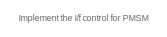
[diagram: root canvas - part 1/2, top center region]
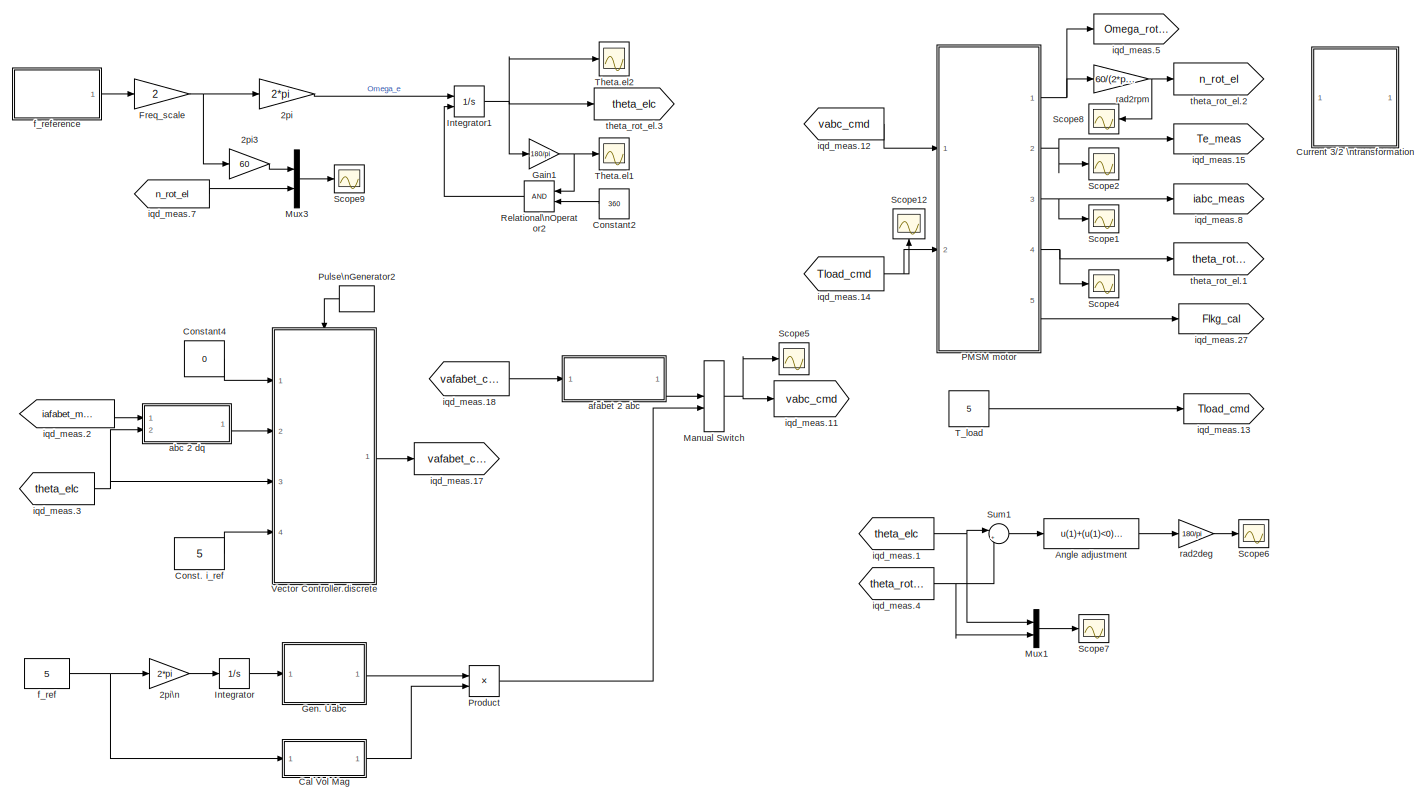
[diagram: root canvas - part 2/2, most of the canvas]
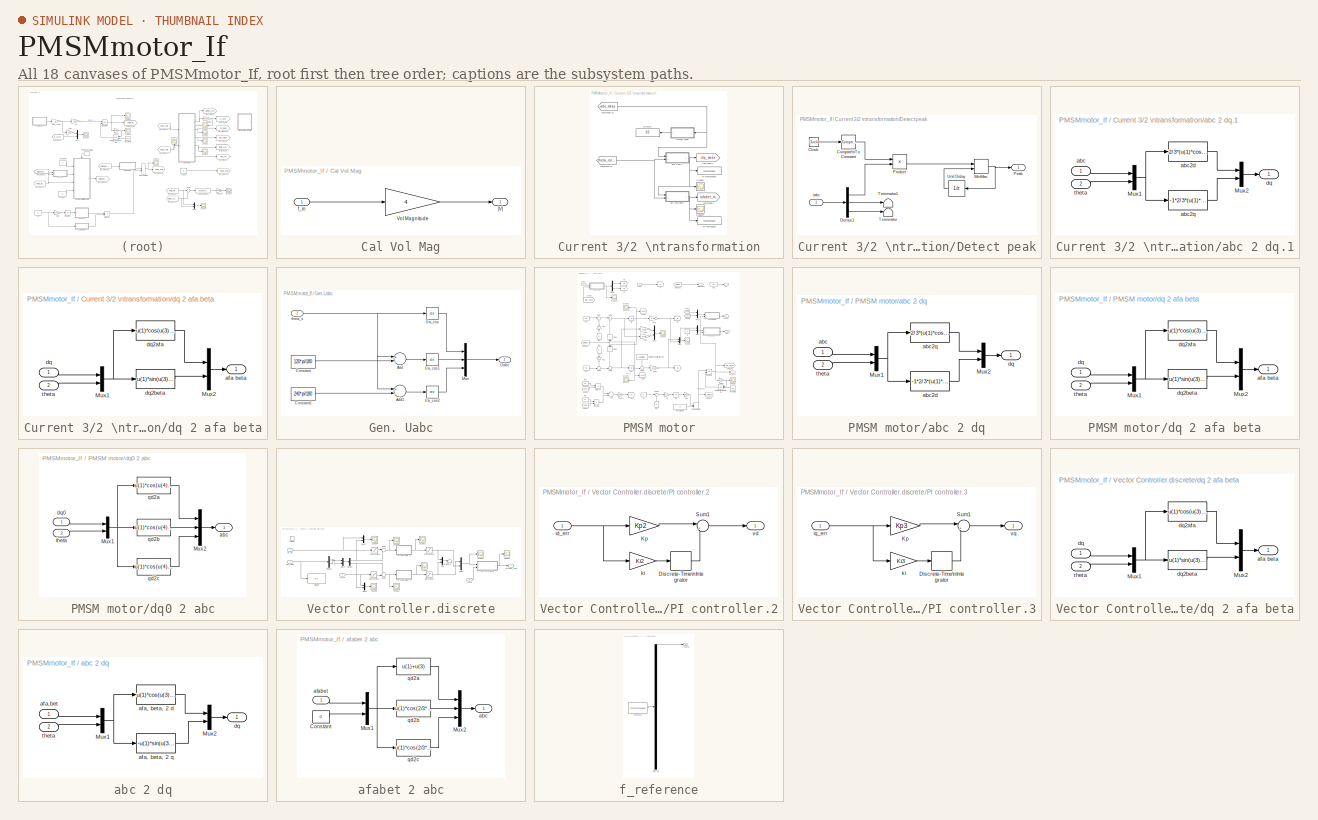
[diagram: thumbnail index - all 18 canvases of the model, root first then tree order]
MODEL PMSMmotor_If
KIND model
BLOCK [Gain] 2pi
  Gain = 2*pi
  OutDataTypeStr = Inherit: Inherit via internal rule
  ParamDataTypeStr = Inherit: Inherit via internal rule
  SID = 6066
  SaturateOnIntegerOverflow = off
BLOCK [Gain] 2pi3
  Gain = 60
  OutDataTypeStr = Inherit: Inherit via internal rule
  ParamDataTypeStr = Inherit: Inherit via internal rule
  SID = 6100
  SaturateOnIntegerOverflow = off
BLOCK [Gain] 2pi\n
  Gain = 2*pi
  OutDataTypeStr = Inherit: Inherit via internal rule
  ParamDataTypeStr = Inherit: Inherit via internal rule
  SID = 6107
  SaturateOnIntegerOverflow = off
BLOCK [Fcn] Angle adjustment
  Expr = u(1)+(u(1)<0)*2*pi
  SID = 6092
BLOCK [SubSystem] Cal Vol Mag
  Ports = [1, 1]
  RequestExecContextInheritance = off
  SID = 6130
  Variant = off
BLOCK [Gain] Cal Vol Mag/Vol Magnitude
  Gain = 4
  OutDataTypeStr = Inherit: Inherit via internal rule
  ParamDataTypeStr = Inherit: Inherit via internal rule
  SID = 6132
  SaturateOnIntegerOverflow = off
BLOCK [Inport] Cal Vol Mag/f_in
  IconDisplay = Port number
  SID = 6131
BLOCK [Outport] Cal Vol Mag/|V|
  IconDisplay = Port number
  SID = 6133
BLOCK [Constant] Const. i_ref
  SID = 4
  Value = 5
BLOCK [Constant] Constant2
  SID = 6079
  Value = 360
BLOCK [Constant] Constant4
  SID = 1036
  Value = 0
BLOCK [SubSystem] Current 3//2 \ntransformation
  Ports = []
  RequestExecContextInheritance = off
  SID = 7
  Variant = off
BLOCK [SubSystem] Current 3//2 \ntransformation/Detect peak
  Ports = [1, 1]
  RequestExecContextInheritance = off
  SID = 11
  Variant = off
BLOCK [Clock] Current 3//2 \ntransformation/Detect peak/Clock
  SID = 13
BLOCK [Reference] Current 3//2 \ntransformation/Detect peak/Compare\nTo Constant  REF=simulink/Logic and Bit\nOperations/Compare\nTo Constant
  OutDataTypeStr = uint8
  Ports = [1, 1]
  SID = 14
  SourceBlock = simulink/Logic and Bit\nOperations/Compare\nTo Constant
  SourceProductBaseCode = SL
  SourceProductName = Simulink
  SourceType = Compare To Constant
  ZeroCross = off
  const = 9.5
  relop = >=
BLOCK [Demux] Current 3//2 \ntransformation/Detect peak/Demux1
  DisplayOption = bar
  Outputs = 3
  Ports = [1, 3]
  SID = 15
BLOCK [MinMax] Current 3//2 \ntransformation/Detect peak/MinMax
  Function = max
  InputSameDT = off
  Inputs = 2
  Ports = [2, 1]
  SID = 16
  SaturateOnIntegerOverflow = off
BLOCK [Outport] Current 3//2 \ntransformation/Detect peak/Peak
  IconDisplay = Port number
  SID = 21
BLOCK [Product] Current 3//2 \ntransformation/Detect peak/Product
  InputSameDT = off
  OutDataTypeStr = Inherit: Inherit via internal rule
  Ports = [2, 1]
  SID = 17
  SaturateOnIntegerOverflow = off
BLOCK [Terminator] Current 3//2 \ntransformation/Detect peak/Terminator
  SID = 18
BLOCK [Terminator] Current 3//2 \ntransformation/Detect peak/Terminator1
  SID = 19
BLOCK [UnitDelay] Current 3//2 \ntransformation/Detect peak/Unit Delay
  SID = 20
  SampleTime = 1/5e3
BLOCK [Inport] Current 3//2 \ntransformation/Detect peak/iabc
  IconDisplay = Port number
  SID = 12
BLOCK [Display] Current 3//2 \ntransformation/Display
  Decimation = 1
  Ports = [1]
  SID = 27
BLOCK [Scope] Current 3//2 \ntransformation/Scope14
  NumInputPorts = 1
  Ports = [1]
  SID = 34
  ScopeSpecificationString = C++SS(StrPVP('Location','[119, 56, 1049, 720]'),StrPVP('Open','off'),MxPVP('AxesTitles',53,'struct(''axes1'',''%<SignalLabel>'')'),MxPVP('ScopeGraphics',56,'struct(''FigureColor'',''[0.5 0.5 0.5]'',''AxesColor'',''[0 0 0]'',''AxesTickColor'',''[1 1 1]'',''LineColors'',''[1 1 0;1 0 1;0 1 1;1 0 0;0 1 0;0 0 1]'',''LineStyles'',''-|-|-|-|-|-'',''LineWidths'',''[0.5 0.5 0.5 0.5 0.5 0.5]'',''MarkerStyle...<+318ch>
BLOCK [Scope] Current 3//2 \ntransformation/Scope6
  NumInputPorts = 1
  Ports = [1]
  SID = 35
  ScopeSpecificationString = C++SS(StrPVP('Location','[533, 264, 1183, 659]'),StrPVP('Open','off'),StrPVP('ZoomMode','xonly'),MxPVP('AxesTitles',53,'struct(''axes1'',''%<SignalLabel>'')'),MxPVP('ScopeGraphics',56,'struct(''FigureColor'',''[0.5 0.5 0.5]'',''AxesColor'',''[0 0 0]'',''AxesTickColor'',''[1 1 1]'',''LineColors'',''[1 1 0;1 0 1;0 1 1;1 0 0;0 1 0;0 0 1]'',''LineStyles'',''-|-|-|-|-|-'',''LineWidths'',''[0.5 0.5 0.5 ...<+301ch>
BLOCK [ToWorkspace] Current 3//2 \ntransformation/To Workspace
  MaxDataPoints = inf
  Ports = [1]
  SID = 36
  SampleTime = 1/fs/4
  SaveFormat = Structure With Time
  VariableName = iafabet_ws
BLOCK [ToWorkspace] Current 3//2 \ntransformation/To Workspace1
  MaxDataPoints = inf
  Ports = [1]
  SID = 37
  SampleTime = 1/fs/4
  SaveFormat = Structure With Time
  VariableName = idq_ws
BLOCK [SubSystem] Current 3//2 \ntransformation/abc 2 dq.1
  Ports = [2, 1]
  RequestExecContextInheritance = off
  SID = 38
  Variant = off
BLOCK [Mux] Current 3//2 \ntransformation/abc 2 dq.1/Mux1
  DisplayOption = bar
  Inputs = 2
  Ports = [2, 1]
  SID = 41
BLOCK [Mux] Current 3//2 \ntransformation/abc 2 dq.1/Mux2
  DisplayOption = bar
  Inputs = 2
  Ports = [2, 1]
  SID = 42
BLOCK [Inport] Current 3//2 \ntransformation/abc 2 dq.1/abc
  IconDisplay = Port number
  SID = 39
BLOCK [Fcn] Current 3//2 \ntransformation/abc 2 dq.1/abc2d
  Expr = 2/3*(u(1)*cos(u(4))+u(2)*cos(u(4)-2*pi/3)+u(3)*cos(u(4)-4*pi/3))
  SID = 43
BLOCK [Fcn] Current 3//2 \ntransformation/abc 2 dq.1/abc2q
  Expr = -1*2/3*(u(1)*sin(u(4))+u(2)*sin(u(4)-2*pi/3)+u(3)*sin(u(4)-4*pi/3))
  SID = 44
BLOCK [Outport] Current 3//2 \ntransformation/abc 2 dq.1/dq
  IconDisplay = Port number
  SID = 45
BLOCK [Inport] Current 3//2 \ntransformation/abc 2 dq.1/theta
  IconDisplay = Port number
  Port = 2
  SID = 40
BLOCK [SubSystem] Current 3//2 \ntransformation/dq 2 afa beta
  Ports = [2, 1]
  RequestExecContextInheritance = off
  SID = 46
  Variant = off
BLOCK [Mux] Current 3//2 \ntransformation/dq 2 afa beta/Mux1
  DisplayOption = bar
  Inputs = 2
  Ports = [2, 1]
  SID = 49
BLOCK [Mux] Current 3//2 \ntransformation/dq 2 afa beta/Mux2
  DisplayOption = bar
  Inputs = 2
  Ports = [2, 1]
  SID = 50
BLOCK [Outport] Current 3//2 \ntransformation/dq 2 afa beta/afa beta
  IconDisplay = Port number
  SID = 53
BLOCK [Inport] Current 3//2 \ntransformation/dq 2 afa beta/dq
  IconDisplay = Port number
  SID = 47
BLOCK [Fcn] Current 3//2 \ntransformation/dq 2 afa beta/dq2afa
  Expr = u(1)*cos(u(3))-u(2)*sin(u(3))
  SID = 51
BLOCK [Fcn] Current 3//2 \ntransformation/dq 2 afa beta/dq2beta
  Expr = u(1)*sin(u(3))+u(2)*cos(u(3))
  SID = 52
BLOCK [Inport] Current 3//2 \ntransformation/dq 2 afa beta/theta
  IconDisplay = Port number
  Port = 2
  SID = 48
BLOCK [Goto] Current 3//2 \ntransformation/iqd_meas.1
  GotoTag = idq_meas
  SID = 54
  TagVisibility = global
BLOCK [From] Current 3//2 \ntransformation/iqd_meas.20
  CloseFcn = tagdialog Close
  GotoTag = theta_rot_el
  SID = 55
  TagVisibility = global
BLOCK [From] Current 3//2 \ntransformation/iqd_meas.21
  CloseFcn = tagdialog Close
  GotoTag = iabc_meas
  SID = 56
  TagVisibility = global
BLOCK [Goto] Current 3//2 \ntransformation/iqd_meas.7
  GotoTag = iafabet_meas
  SID = 58
  TagVisibility = global
BLOCK [Gain] Freq_scale
  Gain = 2
  OutDataTypeStr = Inherit: Inherit via internal rule
  ParamDataTypeStr = Inherit: Inherit via internal rule
  SID = 6084
  SaturateOnIntegerOverflow = off
BLOCK [Gain] Gain1
  Gain = 180/pi
  OutDataTypeStr = Inherit: Inherit via internal rule
  ParamDataTypeStr = Inherit: Inherit via internal rule
  SID = 6080
  SaturateOnIntegerOverflow = off
BLOCK [SubSystem] Gen. Uabc
  Ports = [1, 1]
  RequestExecContextInheritance = off
  SID = 6109
  Variant = off
BLOCK [Sum] Gen. Uabc/Add
  InputSameDT = off
  Inputs = +-
  OutDataTypeStr = Inherit: Inherit via internal rule
  Ports = [2, 1]
  SID = 6111
  SaturateOnIntegerOverflow = off
BLOCK [Sum] Gen. Uabc/Add1
  InputSameDT = off
  Inputs = +-
  OutDataTypeStr = Inherit: Inherit via internal rule
  Ports = [2, 1]
  SID = 6112
  SaturateOnIntegerOverflow = off
BLOCK [Constant] Gen. Uabc/Constant
  SID = 6113
  Value = 120*pi/180
BLOCK [Constant] Gen. Uabc/Constant1
  SID = 6114
  Value = 240*pi/180
BLOCK [Mux] Gen. Uabc/Mux
  DisplayOption = bar
  Inputs = 3
  Ports = [3, 1]
  SID = 6115
BLOCK [Trigonometry] Gen. Uabc/Ua_cos
  Operator = cos
  Ports = [1, 1]
  SID = 6116
BLOCK [Trigonometry] Gen. Uabc/Ua_cos1
  Operator = cos
  Ports = [1, 1]
  SID = 6117
BLOCK [Trigonometry] Gen. Uabc/Ua_cos2
  Operator = cos
  Ports = [1, 1]
  SID = 6118
BLOCK [Outport] Gen. Uabc/Uabc
  IconDisplay = Port number
  SID = 6119
BLOCK [Inport] Gen. Uabc/theta_s
  IconDisplay = Port number
  SID = 6110
BLOCK [Integrator] Integrator
  Ports = [1, 1]
  SID = 6122
BLOCK [Integrator] Integrator1
  ExternalReset = rising
  Ports = [2, 1]
  SID = 6081
BLOCK [ManualSwitch] Manual Switch
  SID = 6123
BLOCK [Mux] Mux1
  DisplayOption = bar
  Inputs = 2
  Ports = [2, 1]
  SID = 6097
BLOCK [Mux] Mux3
  DisplayOption = bar
  Inputs = 2
  Ports = [2, 1]
  SID = 6098
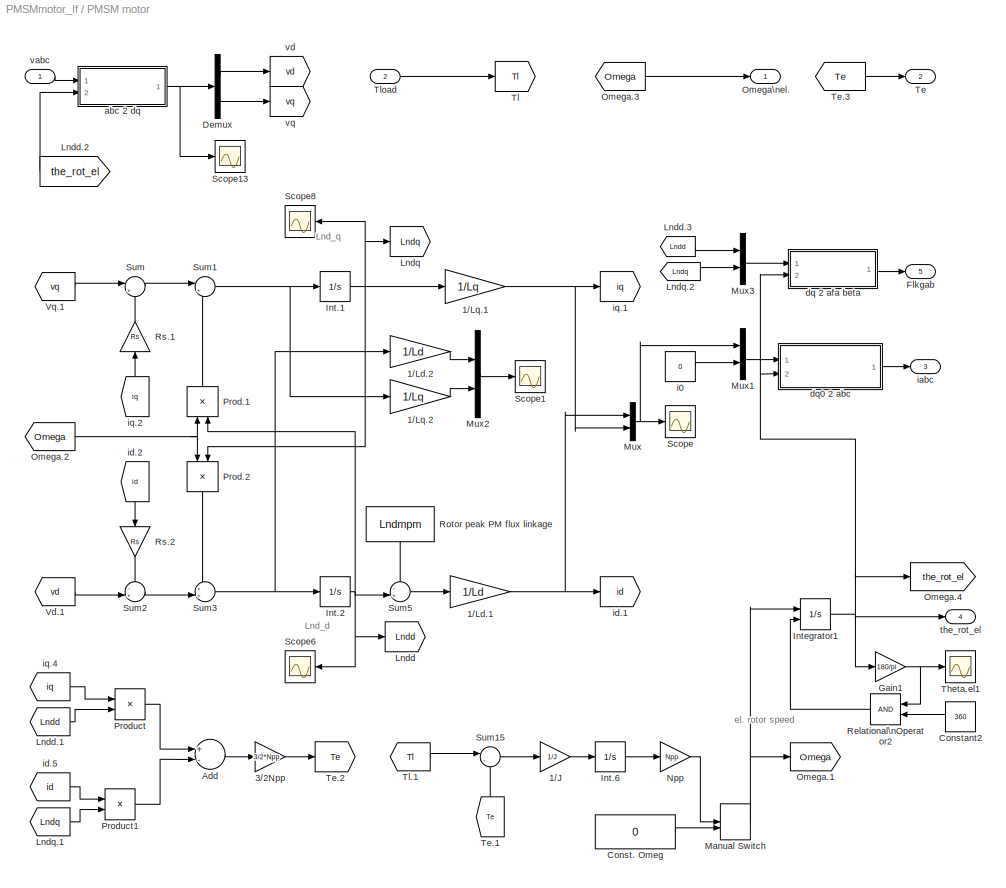
BLOCK [SubSystem] PMSM motor
  Ports = [2, 5]
  RequestExecContextInheritance = off
  SID = 95
  Variant = off
BLOCK [Gain] PMSM motor/1//J
  Gain = 1/J
  OutDataTypeStr = Inherit: Inherit via internal rule
  ParamDataTypeStr = Inherit: Inherit via internal rule
  SID = 98
  SaturateOnIntegerOverflow = off
BLOCK [Gain] PMSM motor/1//Ld.1
  Gain = 1/Ld
  OutDataTypeStr = Inherit: Inherit via internal rule
  ParamDataTypeStr = Inherit: Inherit via internal rule
  SID = 99
  SaturateOnIntegerOverflow = off
BLOCK [Gain] PMSM motor/1//Ld.2
  Gain = 1/Ld
  OutDataTypeStr = Inherit: Inherit via internal rule
  ParamDataTypeStr = Inherit: Inherit via internal rule
  SID = 978
  SaturateOnIntegerOverflow = off
BLOCK [Gain] PMSM motor/1//Lq.1
  Gain = 1/Lq
  OutDataTypeStr = Inherit: Inherit via internal rule
  ParamDataTypeStr = Inherit: Inherit via internal rule
  SID = 100
  SaturateOnIntegerOverflow = off
BLOCK [Gain] PMSM motor/1//Lq.2
  Gain = 1/Lq
  OutDataTypeStr = Inherit: Inherit via internal rule
  ParamDataTypeStr = Inherit: Inherit via internal rule
  SID = 979
  SaturateOnIntegerOverflow = off
BLOCK [Gain] PMSM motor/3//2Npp
  Gain = 3/2*Npp
  OutDataTypeStr = Inherit: Inherit via internal rule
  ParamDataTypeStr = Inherit: Inherit via internal rule
  SID = 101
  SaturateOnIntegerOverflow = off
BLOCK [Sum] PMSM motor/Add
  InputSameDT = off
  Inputs = +-
  OutDataTypeStr = Inherit: Inherit via internal rule
  Ports = [2, 1]
  SID = 102
  SaturateOnIntegerOverflow = off
BLOCK [Constant] PMSM motor/Const. Omeg
  SID = 103
  Value = 0
BLOCK [Constant] PMSM motor/Constant2
  SID = 104
  Value = 360
BLOCK [Demux] PMSM motor/Demux
  DisplayOption = bar
  Outputs = 2
  Ports = [1, 2]
  SID = 105
BLOCK [Outport] PMSM motor/Flkgab
  IconDisplay = Port number
  Port = 5
  SID = 5538
BLOCK [Gain] PMSM motor/Gain1
  Gain = 180/pi
  OutDataTypeStr = Inherit: Inherit via internal rule
  ParamDataTypeStr = Inherit: Inherit via internal rule
  SID = 106
  SaturateOnIntegerOverflow = off
BLOCK [Integrator] PMSM motor/Int.1
  Ports = [1, 1]
  SID = 107
BLOCK [Integrator] PMSM motor/Int.2
  InitialCondition = Lndd_ini
  Ports = [1, 1]
  SID = 108
BLOCK [Integrator] PMSM motor/Int.6
  InitialCondition = Omegae_ini/Npp
  Ports = [1, 1]
  SID = 109
BLOCK [Integrator] PMSM motor/Integrator1
  ExternalReset = rising
  Ports = [2, 1]
  SID = 110
BLOCK [Goto] PMSM motor/Lndd
  GotoTag = Lndd
  SID = 111
BLOCK [From] PMSM motor/Lndd.1
  CloseFcn = tagdialog Close
  GotoTag = Lndd
  SID = 112
BLOCK [From] PMSM motor/Lndd.2
  CloseFcn = tagdialog Close
  GotoTag = the_rot_el
  SID = 113
BLOCK [From] PMSM motor/Lndd.3
  CloseFcn = tagdialog Close
  GotoTag = Lndd
  SID = 5536
BLOCK [Goto] PMSM motor/Lndq
  GotoTag = Lndq
  SID = 114
BLOCK [From] PMSM motor/Lndq.1
  CloseFcn = tagdialog Close
  GotoTag = Lndq
  SID = 115
BLOCK [From] PMSM motor/Lndq.2
  CloseFcn = tagdialog Close
  GotoTag = Lndq
  SID = 5537
BLOCK [ManualSwitch] PMSM motor/Manual Switch
  SID = 116
BLOCK [Mux] PMSM motor/Mux
  DisplayOption = bar
  Inputs = 2
  Ports = [2, 1]
  SID = 117
BLOCK [Mux] PMSM motor/Mux1
  DisplayOption = bar
  Inputs = 2
  Ports = [2, 1]
  SID = 118
BLOCK [Mux] PMSM motor/Mux2
  DisplayOption = bar
  Inputs = 2
  Ports = [2, 1]
  SID = 977
BLOCK [Mux] PMSM motor/Mux3
  DisplayOption = bar
  Inputs = 2
  Ports = [2, 1]
  SID = 5535
BLOCK [Gain] PMSM motor/Npp
  Gain = Npp
  OutDataTypeStr = Inherit: Inherit via internal rule
  ParamDataTypeStr = Inherit: Inherit via internal rule
  SID = 119
  SaturateOnIntegerOverflow = off
BLOCK [Goto] PMSM motor/Omega.1
  GotoTag = Omega
  SID = 120
BLOCK [From] PMSM motor/Omega.2
  CloseFcn = tagdialog Close
  GotoTag = Omega
  SID = 121
BLOCK [From] PMSM motor/Omega.3
  CloseFcn = tagdialog Close
  GotoTag = Omega
  SID = 122
BLOCK [Goto] PMSM motor/Omega.4
  GotoTag = the_rot_el
  SID = 123
BLOCK [Outport] PMSM motor/Omega\nel.
  IconDisplay = Port number
  SID = 178
BLOCK [Product] PMSM motor/Prod.1
  InputSameDT = off
  OutDataTypeStr = Inherit: Inherit via internal rule
  Ports = [2, 1]
  SID = 124
  SaturateOnIntegerOverflow = off
BLOCK [Product] PMSM motor/Prod.2
  InputSameDT = off
  OutDataTypeStr = Inherit: Inherit via internal rule
  Ports = [2, 1]
  SID = 125
  SaturateOnIntegerOverflow = off
BLOCK [Product] PMSM motor/Product
  InputSameDT = off
  OutDataTypeStr = Inherit: Inherit via internal rule
  Ports = [2, 1]
  SID = 126
  SaturateOnIntegerOverflow = off
BLOCK [Product] PMSM motor/Product1
  InputSameDT = off
  OutDataTypeStr = Inherit: Inherit via internal rule
  Ports = [2, 1]
  SID = 127
  SaturateOnIntegerOverflow = off
BLOCK [RelationalOperator] PMSM motor/Relational\nOperator2
  InputSameDT = off
  OutDataTypeStr = boolean
  Ports = [2, 1]
  SID = 128
BLOCK [Constant] PMSM motor/Rotor peak PM flux linkage
  SID = 129
  Value = Lndmpm
BLOCK [Gain] PMSM motor/Rs.1
  Gain = Rs
  OutDataTypeStr = Inherit: Inherit via internal rule
  ParamDataTypeStr = Inherit: Inherit via internal rule
  SID = 130
  SaturateOnIntegerOverflow = off
BLOCK [Gain] PMSM motor/Rs.2
  Gain = Rs
  OutDataTypeStr = Inherit: Inherit via internal rule
  ParamDataTypeStr = Inherit: Inherit via internal rule
  SID = 131
  SaturateOnIntegerOverflow = off
BLOCK [Scope] PMSM motor/Scope
  NumInputPorts = 1
  Ports = [1]
  SID = 132
  ScopeSpecificationString = C++SS(StrPVP('Location','[197, 146, 859, 575]'),StrPVP('Open','off'),MxPVP('AxesTitles',53,'struct(''axes1'',''%<SignalLabel>'')'),MxPVP('ScopeGraphics',56,'struct(''FigureColor'',''[0.5 0.5 0.5]'',''AxesColor'',''[0 0 0]'',''AxesTickColor'',''[1 1 1]'',''LineColors'',''[1 1 0;1 0 1;0 1 1;1 0 0;0 1 0;0 0 1]'',''LineStyles'',''-|-|-|-|-|-'',''LineWidths'',''[0.5 0.5 0.5 0.5 0.5 0.5]'',''MarkerStyle...<+342ch>
BLOCK [Scope] PMSM motor/Scope1
  NumInputPorts = 1
  Ports = [1]
  SID = 981
  ScopeSpecificationString = C++SS(StrPVP('Location','[163, 170, 1019, 653]'),StrPVP('Open','off'),StrPVP('ZoomMode','xonly'),MxPVP('AxesTitles',53,'struct(''axes1'',''%<SignalLabel>'')'),MxPVP('ScopeGraphics',56,'struct(''FigureColor'',''[0.5 0.5 0.5]'',''AxesColor'',''[0 0 0]'',''AxesTickColor'',''[1 1 1]'',''LineColors'',''[1 1 0;1 0 1;0 1 1;1 0 0;0 1 0;0 0 1]'',''LineStyles'',''-|-|-|-|-|-'',''LineWidths'',''[0.5 0.5 0.5 ...<+367ch>
BLOCK [Scope] PMSM motor/Scope13
  NumInputPorts = 1
  Ports = [1]
  SID = 133
  ScopeSpecificationString = C++SS(StrPVP('Location','[6, 189, 1019, 737]'),StrPVP('Open','off'),StrPVP('ZoomMode','xonly'),MxPVP('AxesTitles',53,'struct(''axes1'',''%<SignalLabel>'')'),MxPVP('ScopeGraphics',56,'struct(''FigureColor'',''[0.5 0.5 0.5]'',''AxesColor'',''[0 0 0]'',''AxesTickColor'',''[1 1 1]'',''LineColors'',''[1 1 0;1 0 1;0 1 1;1 0 0;0 1 0;0 0 1]'',''LineStyles'',''-|-|-|-|-|-'',''LineWidths'',''[0.5 0.5 0.5 0....<+340ch>
BLOCK [Scope] PMSM motor/Scope6
  NumInputPorts = 1
  Ports = [1]
  SID = 134
  ScopeSpecificationString = C++SS(StrPVP('Location','[430, 222, 984, 607]'),StrPVP('Open','off'),MxPVP('AxesTitles',53,'struct(''axes1'',''%<SignalLabel>'')'),MxPVP('ScopeGraphics',56,'struct(''FigureColor'',''[0.5 0.5 0.5]'',''AxesColor'',''[0 0 0]'',''AxesTickColor'',''[1 1 1]'',''LineColors'',''[1 1 0;1 0 1;0 1 1;1 0 0;0 1 0;0 0 1]'',''LineStyles'',''-|-|-|-|-|-'',''LineWidths'',''[0.5 0.5 0.5 0.5 0.5 0.5]'',''MarkerStyle...<+352ch>
BLOCK [Scope] PMSM motor/Scope8
  NumInputPorts = 1
  Ports = [1]
  SID = 135
  ScopeSpecificationString = C++SS(StrPVP('Location','[8, 56, 670, 485]'),StrPVP('Open','off'),StrPVP('ZoomMode','yonly'),MxPVP('AxesTitles',53,'struct(''axes1'',''%<SignalLabel>'')'),StrPVP('ShowLegends','off'),StrPVP('TimeRange','35'),StrPVP('YMin','0.997'),StrPVP('YMax','1.005'),StrPVP('SaveName','ScopeData12'),StrPVP('DataFormat','StructureWithTime'),StrPVP('LimitDataPoints','off'),StrPVP('BlockParamSampleTime','0'),StrPV...<+58ch>
BLOCK [Sum] PMSM motor/Sum
  IconShape = round
  InputSameDT = off
  Inputs = |+-
  OutDataTypeStr = Inherit: Inherit via internal rule
  Ports = [2, 1]
  SID = 136
  SaturateOnIntegerOverflow = off
BLOCK [Sum] PMSM motor/Sum1
  IconShape = round
  InputSameDT = off
  Inputs = |+-
  OutDataTypeStr = Inherit: Inherit via internal rule
  Ports = [2, 1]
  SID = 137
  SaturateOnIntegerOverflow = off
BLOCK [Sum] PMSM motor/Sum15
  IconShape = round
  InputSameDT = off
  Inputs = |-+
  OutDataTypeStr = Inherit: Inherit via internal rule
  Ports = [2, 1]
  SID = 138
  SaturateOnIntegerOverflow = off
BLOCK [Sum] PMSM motor/Sum2
  IconShape = round
  InputSameDT = off
  Inputs = -+|
  OutDataTypeStr = Inherit: Inherit via internal rule
  Ports = [2, 1]
  SID = 139
  SaturateOnIntegerOverflow = off
BLOCK [Sum] PMSM motor/Sum3
  IconShape = round
  InputSameDT = off
  Inputs = ++|
  OutDataTypeStr = Inherit: Inherit via internal rule
  Ports = [2, 1]
  SID = 140
  SaturateOnIntegerOverflow = off
BLOCK [Sum] PMSM motor/Sum5
  IconShape = round
  InputSameDT = off
  Inputs = -+|
  OutDataTypeStr = Inherit: Inherit via internal rule
  Ports = [2, 1]
  SID = 141
  SaturateOnIntegerOverflow = off
BLOCK [Outport] PMSM motor/Te
  IconDisplay = Port number
  Port = 2
  SID = 179
BLOCK [From] PMSM motor/Te.1
  CloseFcn = tagdialog Close
  GotoTag = Te
  SID = 142
BLOCK [Goto] PMSM motor/Te.2
  GotoTag = Te
  SID = 143
BLOCK [From] PMSM motor/Te.3
  CloseFcn = tagdialog Close
  GotoTag = Te
  SID = 144
BLOCK [Scope] PMSM motor/Theta.el1
  NumInputPorts = 1
  Ports = [1]
  SID = 145
  ScopeSpecificationString = C++SS(StrPVP('Location','[8, 60, 629, 554]'),StrPVP('Open','off'),MxPVP('AxesTitles',53,'struct(''axes1'',''%<SignalLabel>'')'),StrPVP('ShowLegends','off'),StrPVP('YMin','-225'),StrPVP('YMax','225'),StrPVP('DataFormat','StructureWithTime'),StrPVP('BlockParamSampleTime','0'),StrPVP('LimitDataPoints','on'),StrPVP('Decimation','1'),StrPVP('BlockParamSampleInput','off'))
BLOCK [Goto] PMSM motor/Tl
  GotoTag = Tl
  SID = 146
BLOCK [From] PMSM motor/Tl.1
  CloseFcn = tagdialog Close
  GotoTag = Tl
  SID = 147
BLOCK [Inport] PMSM motor/Tload
  IconDisplay = Port number
  Port = 2
  SID = 97
BLOCK [From] PMSM motor/Vd.1
  CloseFcn = tagdialog Close
  GotoTag = vd
  SID = 150
BLOCK [From] PMSM motor/Vq.1
  CloseFcn = tagdialog Close
  GotoTag = vq
  SID = 151
BLOCK [SubSystem] PMSM motor/abc 2 dq
  Ports = [2, 1]
  RequestExecContextInheritance = off
  SID = 152
  Variant = off
BLOCK [Mux] PMSM motor/abc 2 dq/Mux1
  DisplayOption = bar
  Inputs = 2
  Ports = [2, 1]
  SID = 155
BLOCK [Mux] PMSM motor/abc 2 dq/Mux2
  DisplayOption = bar
  Inputs = 2
  Ports = [2, 1]
  SID = 156
BLOCK [Inport] PMSM motor/abc 2 dq/abc
  IconDisplay = Port number
  SID = 153
BLOCK [Fcn] PMSM motor/abc 2 dq/abc2d
  Expr = -1*2/3*(u(1)*sin(u(4))+u(2)*sin(u(4)-2*pi/3)+u(3)*sin(u(4)-4*pi/3))
  SID = 157
BLOCK [Fcn] PMSM motor/abc 2 dq/abc2q
  Expr = 2/3*(u(1)*cos(u(4))+u(2)*cos(u(4)-2*pi/3)+u(3)*cos(u(4)-4*pi/3))
  SID = 158
BLOCK [Outport] PMSM motor/abc 2 dq/dq
  IconDisplay = Port number
  SID = 159
BLOCK [Inport] PMSM motor/abc 2 dq/theta
  IconDisplay = Port number
  Port = 2
  SID = 154
BLOCK [SubSystem] PMSM motor/dq 2 afa beta
  Ports = [2, 1]
  RequestExecContextInheritance = off
  SID = 5527
  Variant = off
BLOCK [Mux] PMSM motor/dq 2 afa beta/Mux1
  DisplayOption = bar
  Inputs = 2
  Ports = [2, 1]
  SID = 5530
BLOCK [Mux] PMSM motor/dq 2 afa beta/Mux2
  DisplayOption = bar
  Inputs = 2
  Ports = [2, 1]
  SID = 5531
BLOCK [Outport] PMSM motor/dq 2 afa beta/afa beta
  IconDisplay = Port number
  SID = 5534
BLOCK [Inport] PMSM motor/dq 2 afa beta/dq
  IconDisplay = Port number
  SID = 5528
BLOCK [Fcn] PMSM motor/dq 2 afa beta/dq2afa
  Expr = u(1)*cos(u(3))-u(2)*sin(u(3))
  SID = 5532
BLOCK [Fcn] PMSM motor/dq 2 afa beta/dq2beta
  Expr = u(1)*sin(u(3))+u(2)*cos(u(3))
  SID = 5533
BLOCK [Inport] PMSM motor/dq 2 afa beta/theta
  IconDisplay = Port number
  Port = 2
  SID = 5529
BLOCK [SubSystem] PMSM motor/dq0 2 abc
  Ports = [2, 1]
  RequestExecContextInheritance = off
  SID = 160
  Variant = off
BLOCK [Mux] PMSM motor/dq0 2 abc/Mux1
  DisplayOption = bar
  Inputs = 2
  Ports = [2, 1]
  SID = 163
BLOCK [Mux] PMSM motor/dq0 2 abc/Mux2
  DisplayOption = bar
  Inputs = 3
  Ports = [3, 1]
  SID = 164
BLOCK [Outport] PMSM motor/dq0 2 abc/abc
  IconDisplay = Port number
  SID = 168
BLOCK [Inport] PMSM motor/dq0 2 abc/dq0
  IconDisplay = Port number
  SID = 161
BLOCK [Fcn] PMSM motor/dq0 2 abc/qd2a
  Expr = u(1)*cos(u(4))-u(2)*sin(u(4))+u(3)
  SID = 165
BLOCK [Fcn] PMSM motor/dq0 2 abc/qd2b
  Expr = u(1)*cos(u(4)-2/3*pi)-u(2)*sin(u(4)-2/3*pi)+u(3)
  SID = 166
BLOCK [Fcn] PMSM motor/dq0 2 abc/qd2c
  Expr = u(1)*cos(u(4)+2/3*pi)-u(2)*sin(u(4)+2/3*pi)+u(3)
  SID = 167
BLOCK [Inport] PMSM motor/dq0 2 abc/theta
  IconDisplay = Port number
  Port = 2
  SID = 162
BLOCK [Constant] PMSM motor/i0
  SID = 169
  Value = 0
BLOCK [Outport] PMSM motor/iabc
  IconDisplay = Port number
  Port = 3
  SID = 180
BLOCK [Goto] PMSM motor/id.1
  GotoTag = id
  SID = 170
BLOCK [From] PMSM motor/id.2
  CloseFcn = tagdialog Close
  GotoTag = id
  SID = 171
BLOCK [From] PMSM motor/id.5
  CloseFcn = tagdialog Close
  GotoTag = id
  SID = 172
BLOCK [Goto] PMSM motor/iq.1
  GotoTag = iq
  SID = 173
BLOCK [From] PMSM motor/iq.2
  CloseFcn = tagdialog Close
  GotoTag = iq
  SID = 174
BLOCK [From] PMSM motor/iq.4
  CloseFcn = tagdialog Close
  GotoTag = iq
  SID = 175
BLOCK [Outport] PMSM motor/the_rot_el
  IconDisplay = Port number
  Port = 4
  SID = 181
BLOCK [Inport] PMSM motor/vabc
  IconDisplay = Port number
  SID = 96
BLOCK [Goto] PMSM motor/vd
  GotoTag = vd
  SID = 176
BLOCK [Goto] PMSM motor/vq
  GotoTag = vq
  SID = 177
BLOCK [Product] Product
  InputSameDT = off
  OutDataTypeStr = Inherit: Inherit via internal rule
  Ports = [2, 1]
  SID = 6125
  SaturateOnIntegerOverflow = off
BLOCK [DiscretePulseGenerator] Pulse\nGenerator2
  Period = 1/fs
  Ports = [0, 1]
  PulseType = Time based
  PulseWidth = 50
  SID = 184
BLOCK [RelationalOperator] Relational\nOperator2
  InputSameDT = off
  OutDataTypeStr = boolean
  Ports = [2, 1]
  SID = 6082
BLOCK [Scope] Scope1
  NumInputPorts = 1
  Ports = [1]
  SID = 820
  ScopeSpecificationString = C++SS(StrPVP('Location','[369, 242, 1019, 637]'),StrPVP('Open','off'),MxPVP('AxesTitles',53,'struct(''axes1'',''%<SignalLabel>'')'),MxPVP('ScopeGraphics',56,'struct(''FigureColor'',''[0.5 0.5 0.5]'',''AxesColor'',''[0 0 0]'',''AxesTickColor'',''[1 1 1]'',''LineColors'',''[1 1 0;1 0 1;0 1 1;1 0 0;0 1 0;0 0 1]'',''LineStyles'',''-|-|-|-|-|-'',''LineWidths'',''[0.5 0.5 0.5 0.5 0.5 0.5]'',''MarkerStyl...<+357ch>
BLOCK [Scope] Scope12
  NumInputPorts = 1
  Ports = [1]
  SID = 823
  ScopeSpecificationString = C++SS(StrPVP('Location','[122, 287, 772, 682]'),StrPVP('Open','off'),StrPVP('ZoomMode','yonly'),MxPVP('AxesTitles',53,'struct(''axes1'',''%<SignalLabel>'')'),MxPVP('ScopeGraphics',56,'struct(''FigureColor'',''[0.5 0.5 0.5]'',''AxesColor'',''[0 0 0]'',''AxesTickColor'',''[1 1 1]'',''LineColors'',''[1 1 0;1 0 1;0 1 1;1 0 0;0 1 0;0 0 1]'',''LineStyles'',''-|-|-|-|-|-'',''LineWidths'',''[0.5 0.5 0.5 0...<+342ch>
BLOCK [Scope] Scope2
  NumInputPorts = 1
  Ports = [1]
  SID = 824
  ScopeSpecificationString = C++SS(StrPVP('Location','[153, 285, 803, 680]'),StrPVP('Open','off'),MxPVP('AxesTitles',53,'struct(''axes1'',''%<SignalLabel>'')'),MxPVP('ScopeGraphics',56,'struct(''FigureColor'',''[0.5 0.5 0.5]'',''AxesColor'',''[0 0 0]'',''AxesTickColor'',''[1 1 1]'',''LineColors'',''[1 1 0;1 0 1;0 1 1;1 0 0;0 1 0;0 0 1]'',''LineStyles'',''-|-|-|-|-|-'',''LineWidths'',''[0.5 0.5 0.5 0.5 0.5 0.5]'',''MarkerStyle...<+311ch>
BLOCK [Scope] Scope4
  NumInputPorts = 1
  Ports = [1]
  SID = 6077
  ScopeSpecificationString = C++SS(StrPVP('Location','[369, 243, 1019, 637]'),StrPVP('Open','off'),MxPVP('AxesTitles',53,'struct(''axes1'',''%<SignalLabel>'')'),MxPVP('ScopeGraphics',56,'struct(''FigureColor'',''[0.5 0.5 0.5]'',''AxesColor'',''[0 0 0]'',''AxesTickColor'',''[1 1 1]'',''LineColors'',''[1 1 0;1 0 1;0 1 1;1 0 0;0 1 0;0 0 1]'',''LineStyles'',''-|-|-|-|-|-'',''LineWidths'',''[0.5 0.5 0.5 0.5 0.5 0.5]'',''MarkerStyl...<+356ch>
BLOCK [Scope] Scope5
  NumInputPorts = 1
  Ports = [1]
  SID = 6085
  ScopeSpecificationString = C++SS(StrPVP('Location','[153, 285, 803, 680]'),StrPVP('Open','off'),MxPVP('AxesTitles',53,'struct(''axes1'',''%<SignalLabel>'')'),MxPVP('ScopeGraphics',56,'struct(''FigureColor'',''[0.5 0.5 0.5]'',''AxesColor'',''[0 0 0]'',''AxesTickColor'',''[1 1 1]'',''LineColors'',''[1 1 0;1 0 1;0 1 1;1 0 0;0 1 0;0 0 1]'',''LineStyles'',''-|-|-|-|-|-'',''LineWidths'',''[0.5 0.5 0.5 0.5 0.5 0.5]'',''MarkerStyle...<+338ch>
BLOCK [Scope] Scope6
  NumInputPorts = 1
  Ports = [1]
  SID = 6093
  ScopeSpecificationString = C++SS(StrPVP('Location','[229, 185, 1019, 762]'),StrPVP('Open','off'),MxPVP('AxesTitles',53,'struct(''axes1'',''%<SignalLabel>'')'),MxPVP('ScopeGraphics',56,'struct(''FigureColor'',''[0.5 0.5 0.5]'',''AxesColor'',''[0 0 0]'',''AxesTickColor'',''[1 1 1]'',''LineColors'',''[1 1 0;1 0 1;0 1 1;1 0 0;0 1 0;0 0 1]'',''LineStyles'',''-|-|-|-|-|-'',''LineWidths'',''[0.5 0.5 0.5 0.5 0.5 0.5]'',''MarkerStyl...<+366ch>
BLOCK [Scope] Scope7
  NumInputPorts = 1
  Ports = [1]
  SID = 6096
  ScopeSpecificationString = C++SS(StrPVP('Location','[574, 202, 1369, 696]'),StrPVP('Open','off'),MxPVP('AxesTitles',53,'struct(''axes1'',''%<SignalLabel>'')'),MxPVP('ScopeGraphics',56,'struct(''FigureColor'',''[0.5 0.5 0.5]'',''AxesColor'',''[0 0 0]'',''AxesTickColor'',''[1 1 1]'',''LineColors'',''[1 1 0;1 0 1;0 1 1;1 0 0;0 1 0;0 0 1]'',''LineStyles'',''-|-|-|-|-|-'',''LineWidths'',''[0.5 0.5 0.5 0.5 0.5 0.5]'',''MarkerStyl...<+359ch>
BLOCK [Scope] Scope8
  NumInputPorts = 1
  Ports = [1]
  SID = 6135
  ScopeSpecificationString = C++SS(StrPVP('Location','[369, 242, 1019, 637]'),StrPVP('Open','off'),MxPVP('AxesTitles',53,'struct(''axes1'',''%<SignalLabel>'')'),MxPVP('ScopeGraphics',56,'struct(''FigureColor'',''[0.5 0.5 0.5]'',''AxesColor'',''[0 0 0]'',''AxesTickColor'',''[1 1 1]'',''LineColors'',''[1 1 0;1 0 1;0 1 1;1 0 0;0 1 0;0 0 1]'',''LineStyles'',''-|-|-|-|-|-'',''LineWidths'',''[0.5 0.5 0.5 0.5 0.5 0.5]'',''MarkerStyl...<+366ch>
BLOCK [Scope] Scope9
  NumInputPorts = 1
  Ports = [1]
  SID = 6099
  ScopeSpecificationString = C++SS(StrPVP('Location','[369, 242, 1019, 637]'),StrPVP('Open','off'),StrPVP('ZoomMode','yonly'),MxPVP('AxesTitles',53,'struct(''axes1'',''%<SignalLabel>'')'),MxPVP('ScopeGraphics',56,'struct(''FigureColor'',''[0.5 0.5 0.5]'',''AxesColor'',''[0 0 0]'',''AxesTickColor'',''[1 1 1]'',''LineColors'',''[1 1 0;1 0 1;0 1 1;1 0 0;0 1 0;0 0 1]'',''LineStyles'',''-|-|-|-|-|-'',''LineWidths'',''[0.5 0.5 0.5 ...<+385ch>
BLOCK [Sum] Sum1
  IconShape = round
  InputSameDT = off
  Inputs = |+-
  OutDataTypeStr = Inherit: Inherit via internal rule
  Ports = [2, 1]
  SID = 6091
  SaturateOnIntegerOverflow = off
BLOCK [Constant] T_load
  SID = 6105
  Value = 5
BLOCK [Scope] Theta.el1
  NumInputPorts = 1
  Ports = [1]
  SID = 6083
  ScopeSpecificationString = C++SS(StrPVP('Location','[8, 60, 629, 554]'),StrPVP('Open','off'),MxPVP('AxesTitles',53,'struct(''axes1'',''%<SignalLabel>'')'),MxPVP('ScopeGraphics',56,'struct(''FigureColor'',''[0.501960784313725 0.501960784313725 0.501960784313725]'',''AxesColor'',''[0 0 0]'',''AxesTickColor'',''[1 1 1]'',''LineColors'',''[1 1 0;1 0 1;0 1 1;1 0 0;0 1 0;0 0 1]'',''LineStyles'',''-|-|-|-|-|-'',''LineWidths'',''[0...<+350ch>
BLOCK [Scope] Theta.el2
  NumInputPorts = 1
  Ports = [1]
  SID = 6095
  ScopeSpecificationString = C++SS(StrPVP('Location','[8, 60, 629, 554]'),StrPVP('Open','off'),MxPVP('AxesTitles',53,'struct(''axes1'',''%<SignalLabel>'')'),MxPVP('ScopeGraphics',56,'struct(''FigureColor'',''[0.501960784313725 0.501960784313725 0.501960784313725]'',''AxesColor'',''[0 0 0]'',''AxesTickColor'',''[1 1 1]'',''LineColors'',''[1 1 0;1 0 1;0 1 1;1 0 0;0 1 0;0 0 1]'',''LineStyles'',''-|-|-|-|-|-'',''LineWidths'',''[0...<+356ch>
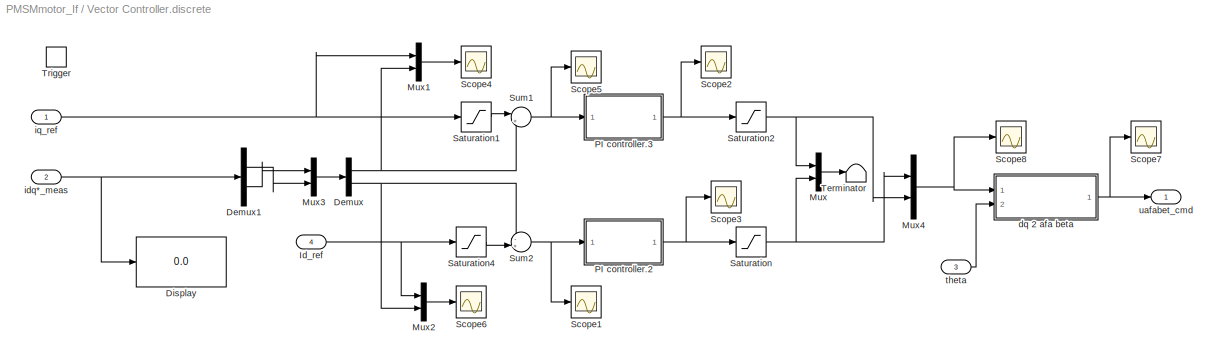
BLOCK [SubSystem] Vector Controller.discrete
  Ports = [4, 1, 0, 1]
  RequestExecContextInheritance = off
  SID = 843
  Variant = off
BLOCK [Demux] Vector Controller.discrete/Demux
  DisplayOption = bar
  Outputs = 2
  Ports = [1, 2]
  SID = 866
BLOCK [Demux] Vector Controller.discrete/Demux1
  DisplayOption = bar
  Outputs = 2
  Ports = [1, 2]
  SID = 867
BLOCK [Display] Vector Controller.discrete/Display
  Decimation = 1
  Ports = [1]
  SID = 868
BLOCK [Inport] Vector Controller.discrete/Id_ref
  IconDisplay = Port number
  Port = 4
  SID = 969
BLOCK [Mux] Vector Controller.discrete/Mux
  DisplayOption = bar
  Inputs = 2
  Ports = [2, 1]
  SID = 872
BLOCK [Mux] Vector Controller.discrete/Mux1
  DisplayOption = bar
  Inputs = 2
  Ports = [2, 1]
  SID = 873
BLOCK [Mux] Vector Controller.discrete/Mux2
  DisplayOption = bar
  Inputs = 2
  Ports = [2, 1]
  SID = 874
BLOCK [Mux] Vector Controller.discrete/Mux3
  DisplayOption = bar
  Inputs = 2
  Ports = [2, 1]
  SID = 875
BLOCK [Mux] Vector Controller.discrete/Mux4
  DisplayOption = bar
  Inputs = 2
  Ports = [2, 1]
  SID = 876
BLOCK [SubSystem] Vector Controller.discrete/PI controller.2
  Ports = [1, 1]
  RequestExecContextInheritance = off
  SID = 877
  Variant = off
BLOCK [DiscreteIntegrator] Vector Controller.discrete/PI controller.2/Discrete-Time\nIntegrator
  ICPrevOutput = DiscIntNeverNeededParam
  ICPrevScaledInput = DiscIntNeverNeededParam
  Ports = [1, 1]
  SID = 879
  SampleTime = -1
BLOCK [Gain] Vector Controller.discrete/PI controller.2/Kp
  Gain = Kp2
  OutDataTypeStr = Inherit: Inherit via internal rule
  ParamDataTypeStr = Inherit: Inherit via internal rule
  SID = 880
  SaturateOnIntegerOverflow = off
BLOCK [Sum] Vector Controller.discrete/PI controller.2/Sum1
  IconShape = round
  InputSameDT = off
  Inputs = |++
  OutDataTypeStr = Inherit: Inherit via internal rule
  Ports = [2, 1]
  SID = 881
  SaturateOnIntegerOverflow = off
BLOCK [Inport] Vector Controller.discrete/PI controller.2/id_err
  IconDisplay = Port number
  SID = 878
BLOCK [Gain] Vector Controller.discrete/PI controller.2/ki
  Gain = Ki2
  OutDataTypeStr = Inherit: Inherit via internal rule
  ParamDataTypeStr = Inherit: Inherit via internal rule
  SID = 882
  SaturateOnIntegerOverflow = off
BLOCK [Outport] Vector Controller.discrete/PI controller.2/vd
  IconDisplay = Port number
  SID = 883
BLOCK [SubSystem] Vector Controller.discrete/PI controller.3
  Ports = [1, 1]
  RequestExecContextInheritance = off
  SID = 884
  Variant = off
BLOCK [DiscreteIntegrator] Vector Controller.discrete/PI controller.3/Discrete-Time\nIntegrator
  ICPrevOutput = DiscIntNeverNeededParam
  ICPrevScaledInput = DiscIntNeverNeededParam
  Ports = [1, 1]
  SID = 886
  SampleTime = -1
BLOCK [Gain] Vector Controller.discrete/PI controller.3/Kp
  Gain = Kp3
  OutDataTypeStr = Inherit: Inherit via internal rule
  ParamDataTypeStr = Inherit: Inherit via internal rule
  SID = 887
  SaturateOnIntegerOverflow = off
BLOCK [Sum] Vector Controller.discrete/PI controller.3/Sum1
  IconShape = round
  InputSameDT = off
  Inputs = |++
  OutDataTypeStr = Inherit: Inherit via internal rule
  Ports = [2, 1]
  SID = 888
  SaturateOnIntegerOverflow = off
BLOCK [Inport] Vector Controller.discrete/PI controller.3/iq_err
  IconDisplay = Port number
  SID = 885
BLOCK [Gain] Vector Controller.discrete/PI controller.3/ki
  Gain = Ki3
  OutDataTypeStr = Inherit: Inherit via internal rule
  ParamDataTypeStr = Inherit: Inherit via internal rule
  SID = 889
  SaturateOnIntegerOverflow = off
BLOCK [Outport] Vector Controller.discrete/PI controller.3/vq
  IconDisplay = Port number
  SID = 890
BLOCK [Saturate] Vector Controller.discrete/Saturation
  InputPortMap = u0
  LowerLimit = -Vph
  Ports = [1, 1]
  SID = 891
  UpperLimit = Vph
BLOCK [Saturate] Vector Controller.discrete/Saturation1
  InputPortMap = u0
  LowerLimit = -Iphmax
  Ports = [1, 1]
  SID = 892
  UpperLimit = Iphmax
BLOCK [Saturate] Vector Controller.discrete/Saturation2
  InputPortMap = u0
  LowerLimit = -Vph
  Ports = [1, 1]
  SID = 893
  UpperLimit = Vph
BLOCK [Saturate] Vector Controller.discrete/Saturation4
  InputPortMap = u0
  LowerLimit = -Iphmax
  Ports = [1, 1]
  SID = 894
  UpperLimit = Iphmax
BLOCK [Scope] Vector Controller.discrete/Scope1
  NumInputPorts = 1
  Ports = [1]
  SID = 895
  ScopeSpecificationString = C++SS(StrPVP('Location','[6, 54, 1372, 733]'),StrPVP('Open','off'),StrPVP('ZoomMode','xonly'),MxPVP('AxesTitles',53,'struct(''axes1'',''%<SignalLabel>'')'),MxPVP('ScopeGraphics',56,'struct(''FigureColor'',''[0.5 0.5 0.5]'',''AxesColor'',''[0 0 0]'',''AxesTickColor'',''[1 1 1]'',''LineColors'',''[1 1 0;1 0 1;0 1 1;1 0 0;0 1 0;0 0 1]'',''LineStyles'',''-|-|-|-|-|-'',''LineWidths'',''[0.5 0.5 0.5 0.5...<+298ch>
BLOCK [Scope] Vector Controller.discrete/Scope2
  NumInputPorts = 1
  Ports = [1]
  SID = 896
  ScopeSpecificationString = C++SS(StrPVP('Location','[201, 176, 851, 571]'),StrPVP('Open','off'),MxPVP('AxesTitles',53,'struct(''axes1'',''%<SignalLabel>'')'),MxPVP('ScopeGraphics',56,'struct(''FigureColor'',''[0.5 0.5 0.5]'',''AxesColor'',''[0 0 0]'',''AxesTickColor'',''[1 1 1]'',''LineColors'',''[1 1 0;1 0 1;0 1 1;1 0 0;0 1 0;0 0 1]'',''LineStyles'',''-|-|-|-|-|-'',''LineWidths'',''[0.5 0.5 0.5 0.5 0.5 0.5]'',''MarkerStyle...<+317ch>
BLOCK [Scope] Vector Controller.discrete/Scope3
  NumInputPorts = 1
  Ports = [1]
  SID = 897
  ScopeSpecificationString = C++SS(StrPVP('Location','[21, 499, 671, 894]'),StrPVP('Open','off'),StrPVP('ZoomMode','xonly'),MxPVP('AxesTitles',53,'struct(''axes1'',''%<SignalLabel>'')'),MxPVP('ScopeGraphics',56,'struct(''FigureColor'',''[0.5 0.5 0.5]'',''AxesColor'',''[0 0 0]'',''AxesTickColor'',''[1 1 1]'',''LineColors'',''[1 1 0;1 0 1;0 1 1;1 0 0;0 1 0;0 0 1]'',''LineStyles'',''-|-|-|-|-|-'',''LineWidths'',''[0.5 0.5 0.5 0....<+299ch>
BLOCK [Scope] Vector Controller.discrete/Scope4
  NumInputPorts = 1
  Ports = [1]
  SID = 898
  ScopeSpecificationString = C++SS(StrPVP('Location','[369, 236, 1019, 631]'),StrPVP('Open','off'),StrPVP('ZoomMode','xonly'),MxPVP('AxesTitles',53,'struct(''axes1'',''%<SignalLabel>'')'),MxPVP('ScopeGraphics',56,'struct(''FigureColor'',''[0.5 0.5 0.5]'',''AxesColor'',''[0 0 0]'',''AxesTickColor'',''[1 1 1]'',''LineColors'',''[1 1 0;1 0 1;0 1 1;1 0 0;0 1 0;0 0 1]'',''LineStyles'',''-|-|-|-|-|-'',''LineWidths'',''[0.5 0.5 0.5 ...<+384ch>
BLOCK [Scope] Vector Controller.discrete/Scope5
  NumInputPorts = 1
  Ports = [1]
  SID = 899
  ScopeSpecificationString = C++SS(StrPVP('Location','[758, 363, 1408, 758]'),StrPVP('Open','off'),StrPVP('ZoomMode','xonly'),MxPVP('AxesTitles',53,'struct(''axes1'',''%<SignalLabel>'')'),MxPVP('ScopeGraphics',56,'struct(''FigureColor'',''[0.5 0.5 0.5]'',''AxesColor'',''[0 0 0]'',''AxesTickColor'',''[1 1 1]'',''LineColors'',''[1 1 0;1 0 1;0 1 1;1 0 0;0 1 0;0 0 1]'',''LineStyles'',''-|-|-|-|-|-'',''LineWidths'',''[0.5 0.5 0.5 ...<+301ch>
BLOCK [Scope] Vector Controller.discrete/Scope6
  NumInputPorts = 1
  Ports = [1]
  SID = 900
  ScopeSpecificationString = C++SS(StrPVP('Location','[7, 79, 1035, 758]'),StrPVP('Open','off'),MxPVP('AxesTitles',53,'struct(''axes1'',''%<SignalLabel>'')'),MxPVP('ScopeGraphics',56,'struct(''FigureColor'',''[0.5 0.5 0.5]'',''AxesColor'',''[0 0 0]'',''AxesTickColor'',''[1 1 1]'',''LineColors'',''[1 1 0;1 0 1;0 1 1;1 0 0;0 1 0;0 0 1]'',''LineStyles'',''-|-|-|-|-|-'',''LineWidths'',''[0.5 0.5 0.5 0.5 0.5 0.5]'',''MarkerStyles'...<+343ch>
BLOCK [Scope] Vector Controller.discrete/Scope7
  NumInputPorts = 1
  Ports = [1]
  SID = 6086
  ScopeSpecificationString = C++SS(StrPVP('Location','[201, 176, 851, 571]'),StrPVP('Open','off'),MxPVP('AxesTitles',53,'struct(''axes1'',''%<SignalLabel>'')'),MxPVP('ScopeGraphics',56,'struct(''FigureColor'',''[0.5 0.5 0.5]'',''AxesColor'',''[0 0 0]'',''AxesTickColor'',''[1 1 1]'',''LineColors'',''[1 1 0;1 0 1;0 1 1;1 0 0;0 1 0;0 0 1]'',''LineStyles'',''-|-|-|-|-|-'',''LineWidths'',''[0.5 0.5 0.5 0.5 0.5 0.5]'',''MarkerStyle...<+311ch>
BLOCK [Scope] Vector Controller.discrete/Scope8
  NumInputPorts = 1
  Ports = [1]
  SID = 6087
  ScopeSpecificationString = C++SS(StrPVP('Location','[201, 176, 851, 571]'),StrPVP('Open','off'),StrPVP('ZoomMode','xonly'),MxPVP('AxesTitles',53,'struct(''axes1'',''%<SignalLabel>'')'),MxPVP('ScopeGraphics',56,'struct(''FigureColor'',''[0.5 0.5 0.5]'',''AxesColor'',''[0 0 0]'',''AxesTickColor'',''[1 1 1]'',''LineColors'',''[1 1 0;1 0 1;0 1 1;1 0 0;0 1 0;0 0 1]'',''LineStyles'',''-|-|-|-|-|-'',''LineWidths'',''[0.5 0.5 0.5 0...<+344ch>
BLOCK [Sum] Vector Controller.discrete/Sum1
  IconShape = round
  InputSameDT = off
  Inputs = |+-
  OutDataTypeStr = Inherit: Inherit via internal rule
  Ports = [2, 1]
  SID = 901
  SaturateOnIntegerOverflow = off
BLOCK [Sum] Vector Controller.discrete/Sum2
  IconShape = round
  InputSameDT = off
  Inputs = -+|
  OutDataTypeStr = Inherit: Inherit via internal rule
  Ports = [2, 1]
  SID = 902
  SaturateOnIntegerOverflow = off
BLOCK [Terminator] Vector Controller.discrete/Terminator
  SID = 903
BLOCK [TriggerPort] Vector Controller.discrete/Trigger
  Ports = []
  SID = 848
  StatesWhenEnabling = held
  VariantControl = Variant
BLOCK [SubSystem] Vector Controller.discrete/dq 2 afa beta
  Ports = [2, 1]
  RequestExecContextInheritance = off
  SID = 904
  Variant = off
BLOCK [Mux] Vector Controller.discrete/dq 2 afa beta/Mux1
  DisplayOption = bar
  Inputs = 2
  Ports = [2, 1]
  SID = 907
BLOCK [Mux] Vector Controller.discrete/dq 2 afa beta/Mux2
  DisplayOption = bar
  Inputs = 2
  Ports = [2, 1]
  SID = 908
BLOCK [Outport] Vector Controller.discrete/dq 2 afa beta/afa beta
  IconDisplay = Port number
  SID = 911
BLOCK [Inport] Vector Controller.discrete/dq 2 afa beta/dq
  IconDisplay = Port number
  SID = 905
BLOCK [Fcn] Vector Controller.discrete/dq 2 afa beta/dq2afa
  Expr = u(1)*cos(u(3))-u(2)*sin(u(3))
  SID = 909
BLOCK [Fcn] Vector Controller.discrete/dq 2 afa beta/dq2beta
  Expr = u(1)*sin(u(3))+u(2)*cos(u(3))
  SID = 910
BLOCK [Inport] Vector Controller.discrete/dq 2 afa beta/theta
  IconDisplay = Port number
  Port = 2
  SID = 906
BLOCK [Inport] Vector Controller.discrete/idq*_meas
  IconDisplay = Port number
  Port = 2
  SID = 845
BLOCK [Inport] Vector Controller.discrete/iq_ref
  IconDisplay = Port number
  SID = 844
BLOCK [Inport] Vector Controller.discrete/theta
  IconDisplay = Port number
  Port = 3
  SID = 846
BLOCK [Outport] Vector Controller.discrete/uafabet_cmd
  IconDisplay = Port number
  SID = 914
BLOCK [SubSystem] abc 2 dq
  Ports = [2, 1]
  RequestExecContextInheritance = off
  SID = 6068
  Variant = off
BLOCK [Mux] abc 2 dq/Mux1
  DisplayOption = bar
  Inputs = 2
  Ports = [2, 1]
  SID = 6071
BLOCK [Mux] abc 2 dq/Mux2
  DisplayOption = bar
  Inputs = 2
  Ports = [2, 1]
  SID = 6072
BLOCK [Fcn] abc 2 dq/afa, beta, 2 d
  Expr = u(1)*cos(u(3))+u(2)*sin(u(3))
  SID = 6073
BLOCK [Fcn] abc 2 dq/afa, beta, 2 q
  Expr = -u(1)*sin(u(3))+u(2)*cos(u(3))
  SID = 6076
BLOCK [Inport] abc 2 dq/afa,bet
  IconDisplay = Port number
  SID = 6069
BLOCK [Outport] abc 2 dq/dq
  IconDisplay = Port number
  SID = 6075
BLOCK [Inport] abc 2 dq/theta
  IconDisplay = Port number
  Port = 2
  SID = 6070
BLOCK [SubSystem] afabet 2 abc
  Ports = [1, 1]
  RequestExecContextInheritance = off
  SID = 926
  Variant = off
BLOCK [Constant] afabet 2 abc/Constant
  SID = 928
  Value = 0
BLOCK [Mux] afabet 2 abc/Mux1
  DisplayOption = bar
  Inputs = 2
  Ports = [2, 1]
  SID = 929
BLOCK [Mux] afabet 2 abc/Mux2
  DisplayOption = bar
  Inputs = 3
  Ports = [3, 1]
  SID = 930
BLOCK [Outport] afabet 2 abc/abc
  IconDisplay = Port number
  SID = 934
BLOCK [Inport] afabet 2 abc/afabet
  IconDisplay = Port number
  SID = 927
BLOCK [Fcn] afabet 2 abc/qd2a
  Expr = u(1)+u(3)
  SID = 931
BLOCK [Fcn] afabet 2 abc/qd2b
  Expr = u(1)*cos(2/3*pi)+u(2)*sin(2/3*pi)+u(3)
  SID = 932
BLOCK [Fcn] afabet 2 abc/qd2c
  Expr = u(1)*cos(2/3*pi)-u(2)*sin(2/3*pi)+u(3)
  SID = 933
BLOCK [Constant] f_ref
  SID = 6127
  Value = 5
BLOCK [SubSystem] f_reference
  ClipboardFcn = sigbuilder_block('clipboard');
  CloseFcn = sigbuilder_block('close');
  ContinueFcn = sigbuilder_block('continue');
  CopyFcn = sigbuilder_block('copy');
  DeleteFcn = sigbuilder_block('delete');
  LoadFcn = sigbuilder_block('load');
  MaskHideContents = on
  ModelCloseFcn = sigbuilder_block('modelClose');
  NameChangeFcn = sigbuilder_block('namechange');
  OpenFcn = sigbuilder_block('open',[211.5 117.75 550.5 395.25 ]);
  PauseFcn = sigbuilder_block('pause');
  Ports = [0, 1]
  PreSaveFcn = sigbuilder_block('preSave');
  RequestExecContextInheritance = off
  SID = 6064
  StartFcn = sigbuilder_block('start');
  StopFcn = sigbuilder_block('stop');
  Tag = STV Subsys
  Variant = off
BLOCK [Demux] f_reference/Demux
  Outputs = 1
  Ports = [1, 1]
  SID = 6064:1
  Tag = STV Demux
BLOCK [FromWorkspace] f_reference/FromWs
  SID = 6064:2
  SampleTime = 0
  SigBuilderData = DataTag0
  Tag = STV FromWs
  VariableName = tuvar
  VnvData = DataTag1
  ZeroCross = on
BLOCK [Outport] f_reference/f_comd
  IconDisplay = Port number
  SID = 6064:4
  Tag = STV Outport
BLOCK [From] iqd_meas.1
  CloseFcn = tagdialog Close
  GotoTag = theta_elc
  SID = 6089
  TagVisibility = global
BLOCK [Goto] iqd_meas.11
  GotoTag = vabc_cmd
  SID = 937
BLOCK [From] iqd_meas.12
  CloseFcn = tagdialog Close
  GotoTag = vabc_cmd
  SID = 938
BLOCK [Goto] iqd_meas.13
  GotoTag = Tload_cmd
  SID = 939
BLOCK [From] iqd_meas.14
  CloseFcn = tagdialog Close
  GotoTag = Tload_cmd
  SID = 940
BLOCK [Goto] iqd_meas.15
  GotoTag = Te_meas
  SID = 941
BLOCK [Goto] iqd_meas.17
  GotoTag = vafabet_cmd
  SID = 942
BLOCK [From] iqd_meas.18
  CloseFcn = tagdialog Close
  GotoTag = vafabet_cmd
  SID = 943
BLOCK [From] iqd_meas.2
  CloseFcn = tagdialog Close
  GotoTag = iafabet_meas
  SID = 945
  TagVisibility = global
BLOCK [Goto] iqd_meas.27
  GotoTag = Flkg_cal
  SID = 4738
BLOCK [From] iqd_meas.3
  CloseFcn = tagdialog Close
  GotoTag = theta_elc
  SID = 947
  TagVisibility = global
BLOCK [From] iqd_meas.4
  CloseFcn = tagdialog Close
  GotoTag = theta_rot_el
  SID = 6090
  TagVisibility = global
BLOCK [Goto] iqd_meas.5
  GotoTag = Omega_rot_el
  SID = 954
BLOCK [From] iqd_meas.7
  CloseFcn = tagdialog Close
  GotoTag = n_rot_el
  SID = 6101
BLOCK [Goto] iqd_meas.8
  GotoTag = iabc_meas
  SID = 957
  TagVisibility = global
BLOCK [Gain] rad2deg
  Gain = 180/pi
  OutDataTypeStr = Inherit: Inherit via internal rule
  ParamDataTypeStr = Inherit: Inherit via internal rule
  SID = 6094
  SaturateOnIntegerOverflow = off
BLOCK [Gain] rad2rpm
  Gain = 60/(2*pi)
  OutDataTypeStr = Inherit: Inherit via internal rule
  ParamDataTypeStr = Inherit: Inherit via internal rule
  SID = 964
  SaturateOnIntegerOverflow = off
BLOCK [Goto] theta_rot_el.1
  GotoTag = theta_rot_el
  SID = 965
  TagVisibility = global
BLOCK [Goto] theta_rot_el.2
  GotoTag = n_rot_el
  SID = 966
BLOCK [Goto] theta_rot_el.3
  GotoTag = theta_elc
  SID = 6067
  TagVisibility = global
ANNOTATION (root): Implement the I/f control for PMSM
ANNOTATION PMSM motor: Lnd_d
ANNOTATION PMSM motor: Lnd_q
ANNOTATION PMSM motor: el. rotor speed
LINE 2pi3:1 -> Mux3:1
LINE 2pi:1 -> Integrator1:1
LINE 2pi\n:1 -> Integrator:1
LINE Angle adjustment:1 -> rad2deg:1
LINE Cal Vol Mag/Vol Magnitude:1 -> Cal Vol Mag/|V|:1
LINE Cal Vol Mag/f_in:1 -> Cal Vol Mag/Vol Magnitude:1
LINE Cal Vol Mag:1 -> Product:2
LINE Const. i_ref:1 -> Vector Controller.discrete:4
LINE Constant2:1 -> Relational\nOperator2:2
LINE Constant4:1 -> Vector Controller.discrete:1
LINE Current 3//2 \ntransformation/Detect peak/Clock:1 -> Current 3//2 \ntransformation/Detect peak/Compare\nTo Constant:1
LINE Current 3//2 \ntransformation/Detect peak/Compare\nTo Constant:1 -> Current 3//2 \ntransformation/Detect peak/Product:1
LINE Current 3//2 \ntransformation/Detect peak/Demux1:1 -> Current 3//2 \ntransformation/Detect peak/Product:2
LINE Current 3//2 \ntransformation/Detect peak/Demux1:2 -> Current 3//2 \ntransformation/Detect peak/Terminator1:1
LINE Current 3//2 \ntransformation/Detect peak/Demux1:3 -> Current 3//2 \ntransformation/Detect peak/Terminator:1
NET Current 3//2 \ntransformation/Detect peak/MinMax:1 -> Current 3//2 \ntransformation/Detect peak/Peak:1, Current 3//2 \ntransformation/Detect peak/Unit Delay:1
LINE Current 3//2 \ntransformation/Detect peak/Product:1 -> Current 3//2 \ntransformation/Detect peak/MinMax:1
LINE Current 3//2 \ntransformation/Detect peak/Unit Delay:1 -> Current 3//2 \ntransformation/Detect peak/MinMax:2
LINE Current 3//2 \ntransformation/Detect peak/iabc:1 -> Current 3//2 \ntransformation/Detect peak/Demux1:1
LINE Current 3//2 \ntransformation/Detect peak:1 -> Current 3//2 \ntransformation/Display:1
NET Current 3//2 \ntransformation/abc 2 dq.1/Mux1:1 -> Current 3//2 \ntransformation/abc 2 dq.1/abc2d:1, Current 3//2 \ntransformation/abc 2 dq.1/abc2q:1
LINE Current 3//2 \ntransformation/abc 2 dq.1/Mux2:1 -> Current 3//2 \ntransformation/abc 2 dq.1/dq:1
LINE Current 3//2 \ntransformation/abc 2 dq.1/abc2d:1 -> Current 3//2 \ntransformation/abc 2 dq.1/Mux2:1
LINE Current 3//2 \ntransformation/abc 2 dq.1/abc2q:1 -> Current 3//2 \ntransformation/abc 2 dq.1/Mux2:2
LINE Current 3//2 \ntransformation/abc 2 dq.1/abc:1 -> Current 3//2 \ntransformation/abc 2 dq.1/Mux1:1
LINE Current 3//2 \ntransformation/abc 2 dq.1/theta:1 -> Current 3//2 \ntransformation/abc 2 dq.1/Mux1:2
NET Current 3//2 \ntransformation/abc 2 dq.1:1 -> Current 3//2 \ntransformation/Scope6:1, Current 3//2 \ntransformation/To Workspace1:1, Current 3//2 \ntransformation/dq 2 afa beta:1, Current 3//2 \ntransformation/iqd_meas.1:1
NET Current 3//2 \ntransformation/dq 2 afa beta/Mux1:1 -> Current 3//2 \ntransformation/dq 2 afa beta/dq2afa:1, Current 3//2 \ntransformation/dq 2 afa beta/dq2beta:1
LINE Current 3//2 \ntransformation/dq 2 afa beta/Mux2:1 -> Current 3//2 \ntransformation/dq 2 afa beta/afa beta:1
LINE Current 3//2 \ntransformation/dq 2 afa beta/dq2afa:1 -> Current 3//2 \ntransformation/dq 2 afa beta/Mux2:1
LINE Current 3//2 \ntransformation/dq 2 afa beta/dq2beta:1 -> Current 3//2 \ntransformation/dq 2 afa beta/Mux2:2
LINE Current 3//2 \ntransformation/dq 2 afa beta/dq:1 -> Current 3//2 \ntransformation/dq 2 afa beta/Mux1:1
LINE Current 3//2 \ntransformation/dq 2 afa beta/theta:1 -> Current 3//2 \ntransformation/dq 2 afa beta/Mux1:2
NET Current 3//2 \ntransformation/dq 2 afa beta:1 -> Current 3//2 \ntransformation/Scope14:1, Current 3//2 \ntransformation/To Workspace:1, Current 3//2 \ntransformation/iqd_meas.7:1
NET Current 3//2 \ntransformation/iqd_meas.20:1 -> Current 3//2 \ntransformation/abc 2 dq.1:2, Current 3//2 \ntransformation/dq 2 afa beta:2
NET Current 3//2 \ntransformation/iqd_meas.21:1 -> Current 3//2 \ntransformation/Detect peak:1, Current 3//2 \ntransformation/abc 2 dq.1:1
NET Freq_scale:1 -> 2pi3:1, 2pi:1
NET Gain1:1 -> Relational\nOperator2:1, Theta.el1:1
LINE Gen. Uabc/Add1:1 -> Gen. Uabc/Ua_cos2:1
LINE Gen. Uabc/Add:1 -> Gen. Uabc/Ua_cos1:1
LINE Gen. Uabc/Constant1:1 -> Gen. Uabc/Add1:2
LINE Gen. Uabc/Constant:1 -> Gen. Uabc/Add:2
LINE Gen. Uabc/Mux:1 -> Gen. Uabc/Uabc:1
LINE Gen. Uabc/Ua_cos1:1 -> Gen. Uabc/Mux:2
LINE Gen. Uabc/Ua_cos2:1 -> Gen. Uabc/Mux:3
LINE Gen. Uabc/Ua_cos:1 -> Gen. Uabc/Mux:1
NET Gen. Uabc/theta_s:1 -> Gen. Uabc/Add1:1, Gen. Uabc/Add:1, Gen. Uabc/Ua_cos:1
LINE Gen. Uabc:1 -> Product:1
NET Integrator1:1 -> Gain1:1, Theta.el2:1, theta_rot_el.3:1
LINE Integrator:1 -> Gen. Uabc:1
NET Manual Switch:1 -> Scope5:1, iqd_meas.11:1
LINE Mux1:1 -> Scope7:1
LINE Mux3:1 -> Scope9:1
LINE PMSM motor/1//J:1 -> PMSM motor/Int.6:1
NET PMSM motor/1//Ld.1:1 -> PMSM motor/Mux:1, PMSM motor/id.1:1
LINE PMSM motor/1//Ld.2:1 -> PMSM motor/Mux2:1
NET PMSM motor/1//Lq.1:1 -> PMSM motor/Mux:2, PMSM motor/iq.1:1
LINE PMSM motor/1//Lq.2:1 -> PMSM motor/Mux2:2
LINE PMSM motor/3//2Npp:1 -> PMSM motor/Te.2:1
LINE PMSM motor/Add:1 -> PMSM motor/3//2Npp:1
LINE PMSM motor/Const. Omeg:1 -> PMSM motor/Manual Switch:2
LINE PMSM motor/Constant2:1 -> PMSM motor/Relational\nOperator2:2
LINE PMSM motor/Demux:1 -> PMSM motor/vd:1
LINE PMSM motor/Demux:2 -> PMSM motor/vq:1
NET PMSM motor/Gain1:1 -> PMSM motor/Relational\nOperator2:1, PMSM motor/Theta.el1:1
NET PMSM motor/Int.1:1 -> PMSM motor/1//Lq.1:1, PMSM motor/Lndq:1, PMSM motor/Prod.2:2, PMSM motor/Scope8:1
NET PMSM motor/Int.2:1 -> PMSM motor/Lndd:1, PMSM motor/Prod.1:2, PMSM motor/Scope6:1, PMSM motor/Sum5:2
LINE PMSM motor/Int.6:1 -> PMSM motor/Npp:1
NET PMSM motor/Integrator1:1 -> PMSM motor/Gain1:1, PMSM motor/Omega.4:1, PMSM motor/dq 2 afa beta:2, PMSM motor/dq0 2 abc:2, PMSM motor/the_rot_el:1
LINE PMSM motor/Lndd.1:1 -> PMSM motor/Product:2
LINE PMSM motor/Lndd.2:1 -> PMSM motor/abc 2 dq:2
LINE PMSM motor/Lndd.3:1 -> PMSM motor/Mux3:1
LINE PMSM motor/Lndq.1:1 -> PMSM motor/Product1:2
LINE PMSM motor/Lndq.2:1 -> PMSM motor/Mux3:2
NET PMSM motor/Manual Switch:1 -> PMSM motor/Integrator1:1, PMSM motor/Omega.1:1
LINE PMSM motor/Mux1:1 -> PMSM motor/dq0 2 abc:1
LINE PMSM motor/Mux2:1 -> PMSM motor/Scope1:1
LINE PMSM motor/Mux3:1 -> PMSM motor/dq 2 afa beta:1
NET PMSM motor/Mux:1 -> PMSM motor/Mux1:1, PMSM motor/Scope:1
LINE PMSM motor/Npp:1 -> PMSM motor/Manual Switch:1
NET PMSM motor/Omega.2:1 -> PMSM motor/Prod.1:1, PMSM motor/Prod.2:1
LINE PMSM motor/Omega.3:1 -> PMSM motor/Omega\nel.:1
LINE PMSM motor/Prod.1:1 -> PMSM motor/Sum1:2
LINE PMSM motor/Prod.2:1 -> PMSM motor/Sum3:1
LINE PMSM motor/Product1:1 -> PMSM motor/Add:2
LINE PMSM motor/Product:1 -> PMSM motor/Add:1
LINE PMSM motor/Relational\nOperator2:1 -> PMSM motor/Integrator1:2
LINE PMSM motor/Rotor peak PM flux linkage:1 -> PMSM motor/Sum5:1
LINE PMSM motor/Rs.1:1 -> PMSM motor/Sum:2
LINE PMSM motor/Rs.2:1 -> PMSM motor/Sum2:1
LINE PMSM motor/Sum15:1 -> PMSM motor/1//J:1
NET PMSM motor/Sum1:1 -> PMSM motor/1//Lq.2:1, PMSM motor/Int.1:1
LINE PMSM motor/Sum2:1 -> PMSM motor/Sum3:2
NET PMSM motor/Sum3:1 -> PMSM motor/1//Ld.2:1, PMSM motor/Int.2:1
LINE PMSM motor/Sum5:1 -> PMSM motor/1//Ld.1:1
LINE PMSM motor/Sum:1 -> PMSM motor/Sum1:1
LINE PMSM motor/Te.1:1 -> PMSM motor/Sum15:2
LINE PMSM motor/Te.3:1 -> PMSM motor/Te:1
LINE PMSM motor/Tl.1:1 -> PMSM motor/Sum15:1
LINE PMSM motor/Tload:1 -> PMSM motor/Tl:1
LINE PMSM motor/Vd.1:1 -> PMSM motor/Sum2:2
LINE PMSM motor/Vq.1:1 -> PMSM motor/Sum:1
NET PMSM motor/abc 2 dq/Mux1:1 -> PMSM motor/abc 2 dq/abc2d:1, PMSM motor/abc 2 dq/abc2q:1
LINE PMSM motor/abc 2 dq/Mux2:1 -> PMSM motor/abc 2 dq/dq:1
LINE PMSM motor/abc 2 dq/abc2d:1 -> PMSM motor/abc 2 dq/Mux2:2
LINE PMSM motor/abc 2 dq/abc2q:1 -> PMSM motor/abc 2 dq/Mux2:1
LINE PMSM motor/abc 2 dq/abc:1 -> PMSM motor/abc 2 dq/Mux1:1
LINE PMSM motor/abc 2 dq/theta:1 -> PMSM motor/abc 2 dq/Mux1:2
NET PMSM motor/abc 2 dq:1 -> PMSM motor/Demux:1, PMSM motor/Scope13:1
NET PMSM motor/dq 2 afa beta/Mux1:1 -> PMSM motor/dq 2 afa beta/dq2afa:1, PMSM motor/dq 2 afa beta/dq2beta:1
LINE PMSM motor/dq 2 afa beta/Mux2:1 -> PMSM motor/dq 2 afa beta/afa beta:1
LINE PMSM motor/dq 2 afa beta/dq2afa:1 -> PMSM motor/dq 2 afa beta/Mux2:1
LINE PMSM motor/dq 2 afa beta/dq2beta:1 -> PMSM motor/dq 2 afa beta/Mux2:2
LINE PMSM motor/dq 2 afa beta/dq:1 -> PMSM motor/dq 2 afa beta/Mux1:1
LINE PMSM motor/dq 2 afa beta/theta:1 -> PMSM motor/dq 2 afa beta/Mux1:2
LINE PMSM motor/dq 2 afa beta:1 -> PMSM motor/Flkgab:1
NET PMSM motor/dq0 2 abc/Mux1:1 -> PMSM motor/dq0 2 abc/qd2a:1, PMSM motor/dq0 2 abc/qd2b:1, PMSM motor/dq0 2 abc/qd2c:1
LINE PMSM motor/dq0 2 abc/Mux2:1 -> PMSM motor/dq0 2 abc/abc:1
LINE PMSM motor/dq0 2 abc/dq0:1 -> PMSM motor/dq0 2 abc/Mux1:1
LINE PMSM motor/dq0 2 abc/qd2a:1 -> PMSM motor/dq0 2 abc/Mux2:1
LINE PMSM motor/dq0 2 abc/qd2b:1 -> PMSM motor/dq0 2 abc/Mux2:2
LINE PMSM motor/dq0 2 abc/qd2c:1 -> PMSM motor/dq0 2 abc/Mux2:3
LINE PMSM motor/dq0 2 abc/theta:1 -> PMSM motor/dq0 2 abc/Mux1:2
LINE PMSM motor/dq0 2 abc:1 -> PMSM motor/iabc:1
LINE PMSM motor/i0:1 -> PMSM motor/Mux1:2
LINE PMSM motor/id.2:1 -> PMSM motor/Rs.2:1
LINE PMSM motor/id.5:1 -> PMSM motor/Product1:1
LINE PMSM motor/iq.2:1 -> PMSM motor/Rs.1:1
LINE PMSM motor/iq.4:1 -> PMSM motor/Product:1
LINE PMSM motor/vabc:1 -> PMSM motor/abc 2 dq:1
NET PMSM motor:1 -> iqd_meas.5:1, rad2rpm:1
NET PMSM motor:2 -> Scope2:1, iqd_meas.15:1
NET PMSM motor:3 -> Scope1:1, iqd_meas.8:1
NET PMSM motor:4 -> Scope4:1, theta_rot_el.1:1
LINE PMSM motor:5 -> iqd_meas.27:1
LINE Product:1 -> Manual Switch:2
LINE Pulse\nGenerator2:1 -> Vector Controller.discrete:trigger
LINE Relational\nOperator2:1 -> Integrator1:2
LINE Sum1:1 -> Angle adjustment:1
LINE T_load:1 -> iqd_meas.13:1
LINE Vector Controller.discrete/Demux1:1 -> Vector Controller.discrete/Mux3:2
LINE Vector Controller.discrete/Demux1:2 -> Vector Controller.discrete/Mux3:1
NET Vector Controller.discrete/Demux:1 -> Vector Controller.discrete/Mux1:2, Vector Controller.discrete/Sum1:2
NET Vector Controller.discrete/Demux:2 -> Vector Controller.discrete/Mux2:2, Vector Controller.discrete/Sum2:1
NET Vector Controller.discrete/Id_ref:1 -> Vector Controller.discrete/Mux2:1, Vector Controller.discrete/Saturation4:1
LINE Vector Controller.discrete/Mux1:1 -> Vector Controller.discrete/Scope4:1
LINE Vector Controller.discrete/Mux2:1 -> Vector Controller.discrete/Scope6:1
LINE Vector Controller.discrete/Mux3:1 -> Vector Controller.discrete/Demux:1
NET Vector Controller.discrete/Mux4:1 -> Vector Controller.discrete/Scope8:1, Vector Controller.discrete/dq 2 afa beta:1
LINE Vector Controller.discrete/Mux:1 -> Vector Controller.discrete/Terminator:1
LINE Vector Controller.discrete/PI controller.2/Discrete-Time\nIntegrator:1 -> Vector Controller.discrete/PI controller.2/Sum1:2
LINE Vector Controller.discrete/PI controller.2/Kp:1 -> Vector Controller.discrete/PI controller.2/Sum1:1
LINE Vector Controller.discrete/PI controller.2/Sum1:1 -> Vector Controller.discrete/PI controller.2/vd:1
NET Vector Controller.discrete/PI controller.2/id_err:1 -> Vector Controller.discrete/PI controller.2/Kp:1, Vector Controller.discrete/PI controller.2/ki:1
LINE Vector Controller.discrete/PI controller.2/ki:1 -> Vector Controller.discrete/PI controller.2/Discrete-Time\nIntegrator:1
NET Vector Controller.discrete/PI controller.2:1 -> Vector Controller.discrete/Saturation:1, Vector Controller.discrete/Scope3:1
LINE Vector Controller.discrete/PI controller.3/Discrete-Time\nIntegrator:1 -> Vector Controller.discrete/PI controller.3/Sum1:2
LINE Vector Controller.discrete/PI controller.3/Kp:1 -> Vector Controller.discrete/PI controller.3/Sum1:1
LINE Vector Controller.discrete/PI controller.3/Sum1:1 -> Vector Controller.discrete/PI controller.3/vq:1
NET Vector Controller.discrete/PI controller.3/iq_err:1 -> Vector Controller.discrete/PI controller.3/Kp:1, Vector Controller.discrete/PI controller.3/ki:1
LINE Vector Controller.discrete/PI controller.3/ki:1 -> Vector Controller.discrete/PI controller.3/Discrete-Time\nIntegrator:1
NET Vector Controller.discrete/PI controller.3:1 -> Vector Controller.discrete/Saturation2:1, Vector Controller.discrete/Scope2:1
LINE Vector Controller.discrete/Saturation1:1 -> Vector Controller.discrete/Sum1:1
NET Vector Controller.discrete/Saturation2:1 -> Vector Controller.discrete/Mux4:2, Vector Controller.discrete/Mux:1
LINE Vector Controller.discrete/Saturation4:1 -> Vector Controller.discrete/Sum2:2
NET Vector Controller.discrete/Saturation:1 -> Vector Controller.discrete/Mux4:1, Vector Controller.discrete/Mux:2
NET Vector Controller.discrete/Sum1:1 -> Vector Controller.discrete/PI controller.3:1, Vector Controller.discrete/Scope5:1
NET Vector Controller.discrete/Sum2:1 -> Vector Controller.discrete/PI controller.2:1, Vector Controller.discrete/Scope1:1
NET Vector Controller.discrete/dq 2 afa beta/Mux1:1 -> Vector Controller.discrete/dq 2 afa beta/dq2afa:1, Vector Controller.discrete/dq 2 afa beta/dq2beta:1
LINE Vector Controller.discrete/dq 2 afa beta/Mux2:1 -> Vector Controller.discrete/dq 2 afa beta/afa beta:1
LINE Vector Controller.discrete/dq 2 afa beta/dq2afa:1 -> Vector Controller.discrete/dq 2 afa beta/Mux2:1
LINE Vector Controller.discrete/dq 2 afa beta/dq2beta:1 -> Vector Controller.discrete/dq 2 afa beta/Mux2:2
LINE Vector Controller.discrete/dq 2 afa beta/dq:1 -> Vector Controller.discrete/dq 2 afa beta/Mux1:1
LINE Vector Controller.discrete/dq 2 afa beta/theta:1 -> Vector Controller.discrete/dq 2 afa beta/Mux1:2
NET Vector Controller.discrete/dq 2 afa beta:1 -> Vector Controller.discrete/Scope7:1, Vector Controller.discrete/uafabet_cmd:1
NET Vector Controller.discrete/idq*_meas:1 -> Vector Controller.discrete/Demux1:1, Vector Controller.discrete/Display:1
NET Vector Controller.discrete/iq_ref:1 -> Vector Controller.discrete/Mux1:1, Vector Controller.discrete/Saturation1:1
LINE Vector Controller.discrete/theta:1 -> Vector Controller.discrete/dq 2 afa beta:2
LINE Vector Controller.discrete:1 -> iqd_meas.17:1
NET abc 2 dq/Mux1:1 -> abc 2 dq/afa, beta, 2 d:1, abc 2 dq/afa, beta, 2 q:1
LINE abc 2 dq/Mux2:1 -> abc 2 dq/dq:1
LINE abc 2 dq/afa, beta, 2 d:1 -> abc 2 dq/Mux2:1
LINE abc 2 dq/afa, beta, 2 q:1 -> abc 2 dq/Mux2:2
LINE abc 2 dq/afa,bet:1 -> abc 2 dq/Mux1:1
LINE abc 2 dq/theta:1 -> abc 2 dq/Mux1:2
LINE abc 2 dq:1 -> Vector Controller.discrete:2
LINE afabet 2 abc/Constant:1 -> afabet 2 abc/Mux1:2
NET afabet 2 abc/Mux1:1 -> afabet 2 abc/qd2a:1, afabet 2 abc/qd2b:1, afabet 2 abc/qd2c:1
LINE afabet 2 abc/Mux2:1 -> afabet 2 abc/abc:1
LINE afabet 2 abc/afabet:1 -> afabet 2 abc/Mux1:1
LINE afabet 2 abc/qd2a:1 -> afabet 2 abc/Mux2:1
LINE afabet 2 abc/qd2b:1 -> afabet 2 abc/Mux2:2
LINE afabet 2 abc/qd2c:1 -> afabet 2 abc/Mux2:3
LINE afabet 2 abc:1 -> Manual Switch:1
NET f_ref:1 -> 2pi\n:1, Cal Vol Mag:1
LINE f_reference/Demux:1 -> f_reference/f_comd:1
LINE f_reference/FromWs:1 -> f_reference/Demux:1
LINE f_reference:1 -> Freq_scale:1
LINE iqd_meas.12:1 -> PMSM motor:1
NET iqd_meas.14:1 -> PMSM motor:2, Scope12:1
LINE iqd_meas.18:1 -> afabet 2 abc:1
NET iqd_meas.1:1 -> Mux1:1, Sum1:1
LINE iqd_meas.2:1 -> abc 2 dq:1
NET iqd_meas.3:1 -> Vector Controller.discrete:3, abc 2 dq:2
NET iqd_meas.4:1 -> Mux1:2, Sum1:2
LINE iqd_meas.7:1 -> Mux3:2
LINE rad2deg:1 -> Scope6:1
NET rad2rpm:1 -> Scope8:1, theta_rot_el.2:1
note: NET lines group one-source signal fan-out (src -> all destinations, sorted); 1:1 wires keep LINE
